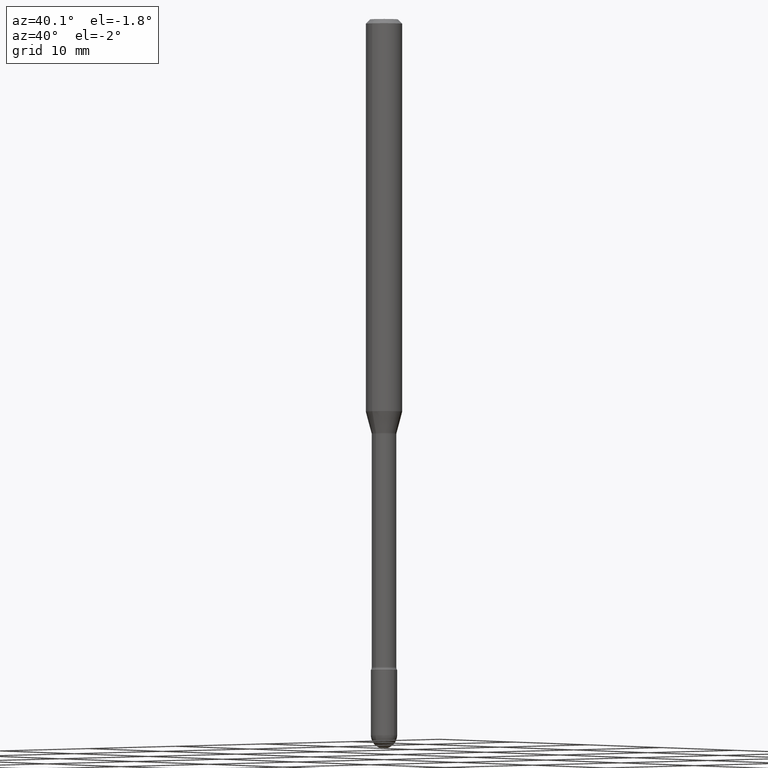
[diagram: clean part render]
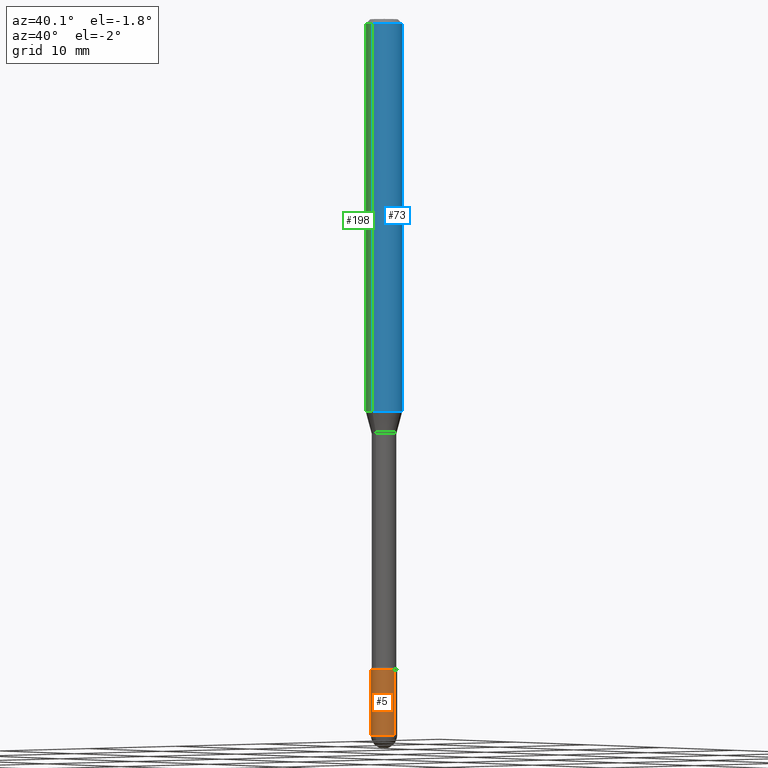
[diagram: same view with three faces highlighted in distinct colors, each labeled with its STEP entity id]
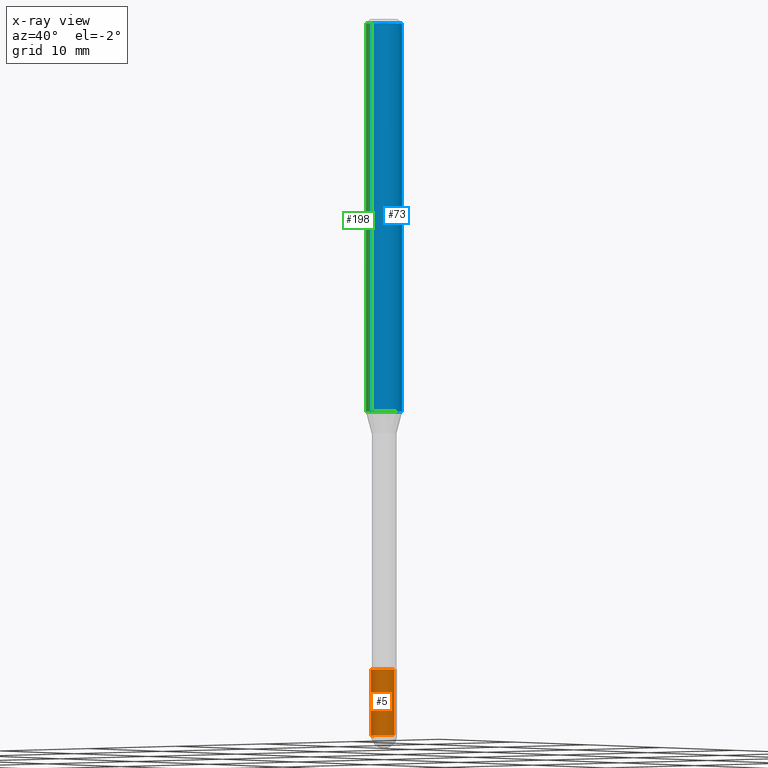
[diagram: x-ray of the same camera — body ghosted, the three highlighted faces saturated]
A machine part, auxiliary view with three faces highlighted in distinct colors.
The next image is the same camera in x-ray (body ghosted, the three faces saturated) — at least one of them is partly hidden behind the body in this view.
Their STEP definitions:

[orange] entity #5 — the highlighted cylindrical surface (edge-blend (fillet) strip) has radius 1.143 mm, axis along (-0, 0, 1).
#2 = EDGE_CURVE ( 'NONE', #392, #203, #393, .T. ) ;
#5 = ADVANCED_FACE ( 'NONE', ( #401 ), #406, .T. ) ;
#23 = LINE ( 'NONE', #62, #30 ) ;
#24 = CARTESIAN_POINT ( 'NONE',  ( -0.04499999999999999833, -7.859050805148022285E-15, -2.229999999999999982 ) ) ;
#30 = VECTOR ( 'NONE', #239, 39.37007874015748143 ) ;
#43 = ORIENTED_EDGE ( 'NONE', *, *, #104, .T. ) ;
#62 = CARTESIAN_POINT ( 'NONE',  ( -0.04499999999999999833, 3.197442310920450718E-16, -2.213520790614707560E-30 ) ) ;
#72 = DIRECTION ( 'NONE',  ( -2.445468806185136877E-29, 3.491481338843145188E-15, 1.000000000000000000 ) ) ;
#77 = AXIS2_PLACEMENT_3D ( 'NONE', #159, #552, #157 ) ;
#89 = EDGE_CURVE ( 'NONE', #465, #229, #23, .T. ) ;
#99 = DIRECTION ( 'NONE',  ( -2.445468806185136597E-29, 3.491481338843145583E-15, 1.000000000000000000 ) ) ;
#101 = EDGE_CURVE ( 'NONE', #229, #287, #436, .T. ) ;
#104 = EDGE_CURVE ( 'NONE', #465, #392, #301, .T. ) ;
#122 = AXIS2_PLACEMENT_3D ( 'NONE', #500, #99, #273 ) ;
#125 = EDGE_CURVE ( 'NONE', #203, #287, #550, .T. ) ;
#127 = DIRECTION ( 'NONE',  ( -2.445468806185136597E-29, 3.491481338843145583E-15, 1.000000000000000000 ) ) ;
#147 = CARTESIAN_POINT ( 'NONE',  ( 0.04499999999999999833, -8.100236706116096837E-15, -2.229999999999999982 ) ) ;
#157 = DIRECTION ( 'NONE',  ( 1.000000000000000000, -6.982962677686269077E-15, 0.000000000000000000 ) ) ;
#159 = CARTESIAN_POINT ( 'NONE',  ( 6.003625919184510659E-29, -8.571586686859921733E-15, -2.455000000000000071 ) ) ;
#167 = DIRECTION ( 'NONE',  ( 1.000000000000000000, -6.982962677686269077E-15, 0.000000000000000000 ) ) ;
#190 = ORIENTED_EDGE ( 'NONE', *, *, #101, .F. ) ;
#203 = VERTEX_POINT ( 'NONE', #416 ) ;
#224 = AXIS2_PLACEMENT_3D ( 'NONE', #351, #127, #308 ) ;
#229 = VERTEX_POINT ( 'NONE', #24 ) ;
#239 = DIRECTION ( 'NONE',  ( -2.445468806185136877E-29, 3.491481338843145188E-15, 1.000000000000000000 ) ) ;
#252 = VECTOR ( 'NONE', #72, 39.37007874015748143 ) ;
#254 = CARTESIAN_POINT ( 'NONE',  ( -0.04499999999999999833, -7.859050805148022285E-15, -2.455000000000000071 ) ) ;
#273 = DIRECTION ( 'NONE',  ( 1.000000000000000000, -6.982962677686269077E-15, 0.000000000000000000 ) ) ;
#287 = VERTEX_POINT ( 'NONE', #147 ) ;
#301 = CIRCLE ( 'NONE', #77, 0.04499999999999999833 ) ;
#305 = DIRECTION ( 'NONE',  ( -2.445468806185136597E-29, 3.491481338843145583E-15, 1.000000000000000000 ) ) ;
#308 = DIRECTION ( 'NONE',  ( 1.000000000000000000, -6.982962677686266711E-15, 4.876176775795935793E-29 ) ) ;
#339 = CARTESIAN_POINT ( 'NONE',  ( 0.04499999999999999833, -3.142333204958819823E-16, 2.194279549108170967E-30 ) ) ;
#347 = CARTESIAN_POINT ( 'NONE',  ( 6.003625919184510659E-29, -8.571586686859921733E-15, -2.455000000000000071 ) ) ;
#351 = CARTESIAN_POINT ( 'NONE',  ( 0.000000000000000000, 0.000000000000000000, 0.000000000000000000 ) ) ;
#392 = VERTEX_POINT ( 'NONE', #485 ) ;
#393 = CIRCLE ( 'NONE', #402, 0.04499999999999999833 ) ;
#401 = FACE_OUTER_BOUND ( 'NONE', #532, .T. ) ;
#402 = AXIS2_PLACEMENT_3D ( 'NONE', #347, #305, #167 ) ;
#406 = CYLINDRICAL_SURFACE ( 'NONE', #224, 0.04499999999999999833 ) ;
#416 = CARTESIAN_POINT ( 'NONE',  ( 0.04499999999999999833, -8.493028356735950128E-15, -2.455000000000000071 ) ) ;
#436 = CIRCLE ( 'NONE', #122, 0.04499999999999999833 ) ;
#450 = ORIENTED_EDGE ( 'NONE', *, *, #89, .F. ) ;
#465 = VERTEX_POINT ( 'NONE', #254 ) ;
#485 = CARTESIAN_POINT ( 'NONE',  ( -3.197442310919848226E-16, -0.04500000000000855399, -2.454999999999999627 ) ) ;
#493 = ORIENTED_EDGE ( 'NONE', *, *, #2, .T. ) ;
#500 = CARTESIAN_POINT ( 'NONE',  ( 5.453395437792854252E-29, -7.786003385620215150E-15, -2.229999999999999982 ) ) ;
#501 = ORIENTED_EDGE ( 'NONE', *, *, #125, .T. ) ;
#532 = EDGE_LOOP ( 'NONE', ( #450, #43, #493, #501, #190 ) ) ;
#550 = LINE ( 'NONE', #339, #252 ) ;
#552 = DIRECTION ( 'NONE',  ( -2.445468806185136597E-29, 3.491481338843145583E-15, 1.000000000000000000 ) ) ;

[blue] entity #73 — the highlighted cylindrical surface (edge-blend (fillet) strip) has radius 1.5875 mm, axis along (-0, 0, 1).
#29 = CARTESIAN_POINT ( 'NONE',  ( 4.440892098500956497E-16, 0.06249999999999533706, -1.344612573687109514 ) ) ;
#36 = VERTEX_POINT ( 'NONE', #317 ) ;
#55 = VERTEX_POINT ( 'NONE', #126 ) ;
#59 = EDGE_CURVE ( 'NONE', #178, #36, #272, .T. ) ;
#73 = ADVANCED_FACE ( 'NONE', ( #539 ), #143, .T. ) ;
#124 = ORIENTED_EDGE ( 'NONE', *, *, #59, .T. ) ;
#126 = CARTESIAN_POINT ( 'NONE',  ( -4.364351673553584879E-16, -0.06250000000000466294, -1.344612573687108847 ) ) ;
#135 = EDGE_LOOP ( 'NONE', ( #162, #124, #174, #560 ) ) ;
#143 = CYLINDRICAL_SURFACE ( 'NONE', #528, 0.06250000000000000000 ) ;
#150 = VERTEX_POINT ( 'NONE', #295 ) ;
#162 = ORIENTED_EDGE ( 'NONE', *, *, #497, .T. ) ;
#174 = ORIENTED_EDGE ( 'NONE', *, *, #200, .F. ) ;
#178 = VERTEX_POINT ( 'NONE', #29 ) ;
#187 = CIRCLE ( 'NONE', #348, 0.06250000000000000000 ) ;
#200 = EDGE_CURVE ( 'NONE', #150, #36, #267, .T. ) ;
#222 = DIRECTION ( 'NONE',  ( -6.982962677686265922E-15, -1.000000000000000000, 4.370956789862821150E-15 ) ) ;
#228 = EDGE_CURVE ( 'NONE', #55, #150, #337, .T. ) ;
#234 = AXIS2_PLACEMENT_3D ( 'NONE', #292, #333, #424 ) ;
#245 = CARTESIAN_POINT ( 'NONE',  ( -4.364351673553916201E-16, -0.06250000000000000000, 6.962928015348440735E-16 ) ) ;
#253 = VECTOR ( 'NONE', #429, 39.37007874015748143 ) ;
#267 = CIRCLE ( 'NONE', #234, 0.06250000000000000000 ) ;
#271 = CARTESIAN_POINT ( 'NONE',  ( 3.288180779018543257E-29, -4.694728841873150887E-15, -1.344612573687109069 ) ) ;
#272 = LINE ( 'NONE', #453, #515 ) ;
#292 = CARTESIAN_POINT ( 'NONE',  ( 3.668172725027320254E-31, -5.237265663446382716E-17, -0.01500000000000008271 ) ) ;
#295 = CARTESIAN_POINT ( 'NONE',  ( -4.364351673553912750E-16, -0.06250000000000005551, -0.01499999999999986587 ) ) ;
#316 = DIRECTION ( 'NONE',  ( -6.982962677686265922E-15, -1.000000000000000000, 3.491510442297568953E-15 ) ) ;
#317 = CARTESIAN_POINT ( 'NONE',  ( 4.440892098500956497E-16, 0.06249999999999993755, -0.01500000000000030129 ) ) ;
#327 = CARTESIAN_POINT ( 'NONE',  ( -1.169113584055446105E-44, 1.669184350826100908E-30, 4.780733988912460139E-16 ) ) ;
#333 = DIRECTION ( 'NONE',  ( -2.445448483351533547E-29, 3.491510442297568953E-15, 1.000000000000000000 ) ) ;
#337 = LINE ( 'NONE', #245, #253 ) ;
#348 = AXIS2_PLACEMENT_3D ( 'NONE', #271, #452, #222 ) ;
#363 = DIRECTION ( 'NONE',  ( -2.445448483351533547E-29, 3.491510442297568953E-15, 1.000000000000000000 ) ) ;
#424 = DIRECTION ( 'NONE',  ( -6.982962677686265922E-15, -1.000000000000000000, 3.483106191921935554E-15 ) ) ;
#429 = DIRECTION ( 'NONE',  ( -2.445448483351533547E-29, 3.491510442297568953E-15, 1.000000000000000000 ) ) ;
#452 = DIRECTION ( 'NONE',  ( -2.445448483351533547E-29, 3.491510442297568953E-15, 1.000000000000000000 ) ) ;
#453 = CARTESIAN_POINT ( 'NONE',  ( 4.440892098500625669E-16, 0.06250000000000000000, 2.598539962476480037E-16 ) ) ;
#497 = EDGE_CURVE ( 'NONE', #55, #178, #187, .T. ) ;
#515 = VECTOR ( 'NONE', #363, 39.37007874015748143 ) ;
#527 = DIRECTION ( 'NONE',  ( -2.445448483351533547E-29, 3.491510442297568953E-15, 1.000000000000000000 ) ) ;
#528 = AXIS2_PLACEMENT_3D ( 'NONE', #327, #527, #316 ) ;
#539 = FACE_OUTER_BOUND ( 'NONE', #135, .T. ) ;
#560 = ORIENTED_EDGE ( 'NONE', *, *, #228, .F. ) ;

[green] entity #198 — the highlighted cylindrical surface (edge-blend (fillet) strip) has radius 1.5875 mm, axis along (-0, 0, 1).
#29 = CARTESIAN_POINT ( 'NONE',  ( 4.440892098500956497E-16, 0.06249999999999533706, -1.344612573687109514 ) ) ;
#36 = VERTEX_POINT ( 'NONE', #317 ) ;
#37 = ORIENTED_EDGE ( 'NONE', *, *, #59, .F. ) ;
#55 = VERTEX_POINT ( 'NONE', #126 ) ;
#59 = EDGE_CURVE ( 'NONE', #178, #36, #272, .T. ) ;
#126 = CARTESIAN_POINT ( 'NONE',  ( -4.364351673553584879E-16, -0.06250000000000466294, -1.344612573687108847 ) ) ;
#150 = VERTEX_POINT ( 'NONE', #295 ) ;
#178 = VERTEX_POINT ( 'NONE', #29 ) ;
#198 = ADVANCED_FACE ( 'NONE', ( #340 ), #285, .T. ) ;
#199 = CARTESIAN_POINT ( 'NONE',  ( 3.288180779018543257E-29, -4.694728841873150887E-15, -1.344612573687109069 ) ) ;
#228 = EDGE_CURVE ( 'NONE', #55, #150, #337, .T. ) ;
#238 = DIRECTION ( 'NONE',  ( -6.982962677686265922E-15, -1.000000000000000000, 3.483106191921935554E-15 ) ) ;
#245 = CARTESIAN_POINT ( 'NONE',  ( -4.364351673553916201E-16, -0.06250000000000000000, 6.962928015348440735E-16 ) ) ;
#250 = EDGE_CURVE ( 'NONE', #178, #55, #563, .T. ) ;
#253 = VECTOR ( 'NONE', #429, 39.37007874015748143 ) ;
#264 = ORIENTED_EDGE ( 'NONE', *, *, #307, .F. ) ;
#272 = LINE ( 'NONE', #453, #515 ) ;
#285 = CYLINDRICAL_SURFACE ( 'NONE', #288, 0.06250000000000000000 ) ;
#288 = AXIS2_PLACEMENT_3D ( 'NONE', #463, #391, #469 ) ;
#295 = CARTESIAN_POINT ( 'NONE',  ( -4.364351673553912750E-16, -0.06250000000000005551, -0.01499999999999986587 ) ) ;
#307 = EDGE_CURVE ( 'NONE', #36, #150, #437, .T. ) ;
#315 = AXIS2_PLACEMENT_3D ( 'NONE', #199, #386, #551 ) ;
#317 = CARTESIAN_POINT ( 'NONE',  ( 4.440892098500956497E-16, 0.06249999999999993755, -0.01500000000000030129 ) ) ;
#337 = LINE ( 'NONE', #245, #253 ) ;
#340 = FACE_OUTER_BOUND ( 'NONE', #364, .T. ) ;
#363 = DIRECTION ( 'NONE',  ( -2.445448483351533547E-29, 3.491510442297568953E-15, 1.000000000000000000 ) ) ;
#364 = EDGE_LOOP ( 'NONE', ( #37, #546, #554, #264 ) ) ;
#386 = DIRECTION ( 'NONE',  ( -2.445448483351533547E-29, 3.491510442297568953E-15, 1.000000000000000000 ) ) ;
#391 = DIRECTION ( 'NONE',  ( -2.445448483351533547E-29, 3.491510442297568953E-15, 1.000000000000000000 ) ) ;
#394 = AXIS2_PLACEMENT_3D ( 'NONE', #422, #466, #238 ) ;
#422 = CARTESIAN_POINT ( 'NONE',  ( 3.668172725027320254E-31, -5.237265663446382716E-17, -0.01500000000000008271 ) ) ;
#429 = DIRECTION ( 'NONE',  ( -2.445448483351533547E-29, 3.491510442297568953E-15, 1.000000000000000000 ) ) ;
#437 = CIRCLE ( 'NONE', #394, 0.06250000000000000000 ) ;
#453 = CARTESIAN_POINT ( 'NONE',  ( 4.440892098500625669E-16, 0.06250000000000000000, 2.598539962476480037E-16 ) ) ;
#463 = CARTESIAN_POINT ( 'NONE',  ( -1.169113584055446105E-44, 1.669184350826100908E-30, 4.780733988912460139E-16 ) ) ;
#466 = DIRECTION ( 'NONE',  ( -2.445448483351533547E-29, 3.491510442297568953E-15, 1.000000000000000000 ) ) ;
#469 = DIRECTION ( 'NONE',  ( -6.982962677686265922E-15, -1.000000000000000000, 3.491510442297568953E-15 ) ) ;
#515 = VECTOR ( 'NONE', #363, 39.37007874015748143 ) ;
#546 = ORIENTED_EDGE ( 'NONE', *, *, #250, .T. ) ;
#551 = DIRECTION ( 'NONE',  ( -6.982962677686265922E-15, -1.000000000000000000, 4.370956789862821150E-15 ) ) ;
#554 = ORIENTED_EDGE ( 'NONE', *, *, #228, .T. ) ;
#563 = CIRCLE ( 'NONE', #315, 0.06250000000000000000 ) ;